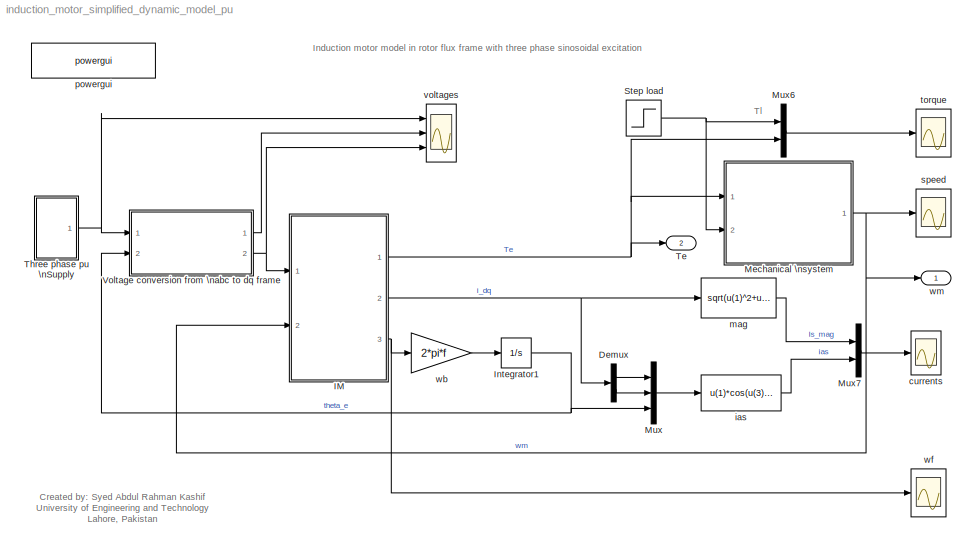
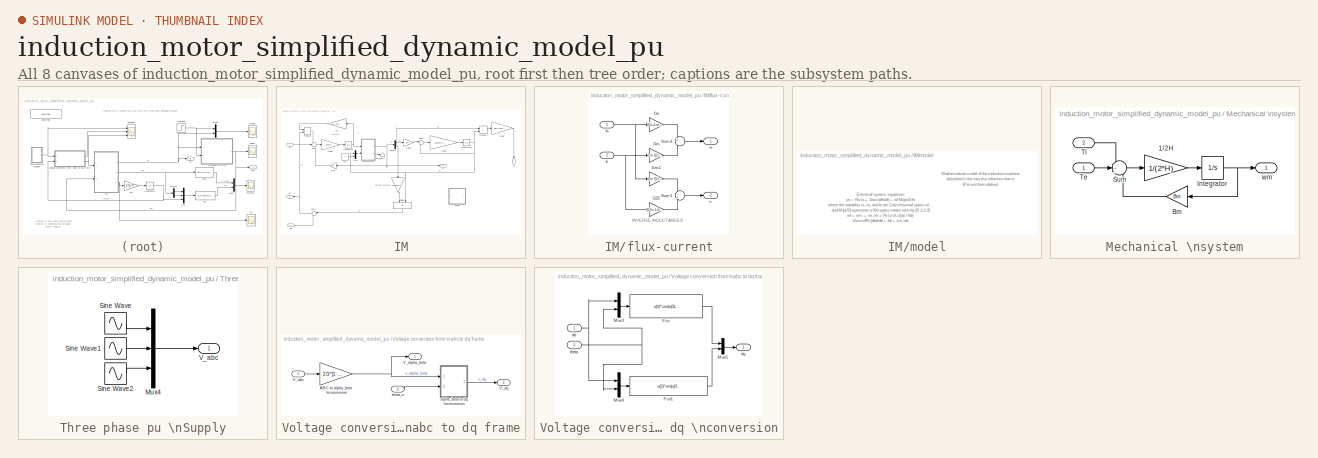
[diagram: thumbnail index - all 8 canvases of the model, root first then tree order]
MODEL induction_motor_simplified_dynamic_model_pu
KIND model
CONFIG InitFcn = clc;\nclear;\n\nf=50;          % motor supply frequency\nRs=0.01;     % Stator resistance in pu\nRr=0.02;     % Rotor resistance in pu\nLls=0.10;     % Stator leakage inductance in pu\nLlr=0.10;     % Rotor leakage inductance in pu\nLm=4.50;    % Magnetising reactance in pu\nwb=2*pi*f;  % base frequency
CONFIG StopFcn = figure(1);\nplot(wm,Te,'-r');\ngrid;\ntitle('Torque-speed X-tics');\nxlabel('Speed [pu]');\nylabel('Torque [pu]');\nclear;
BLOCK [Demux] Demux
  Outputs = 2
  Ports = [1, 2]
  SID = 2
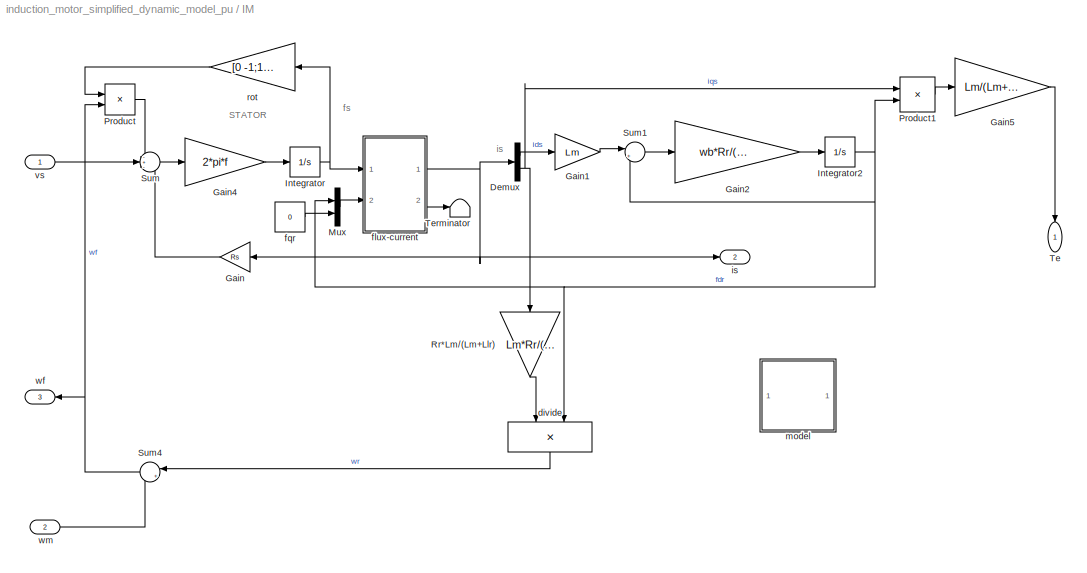
BLOCK [SubSystem] IM
  FunctionWithSeparateData = off
  MaskHideContents = off
  MinAlgLoopOccurrences = off
  Opaque = off
  Ports = [2, 3]
  PropExecContextOutsideSubsystem = off
  RTWSystemCode = Auto
  RequestExecContextInheritance = off
  SID = 85
BLOCK [Demux] IM/Demux
  Outputs = 2
  Ports = [1, 2]
  SID = 88
BLOCK [Gain] IM/Gain
  Gain = Rs
  OutDataType = sfix(16)
  OutScaling = 2^0
  ParameterDataType = sfix(16)
  ParameterScaling = 2^0
  SID = 89
BLOCK [Gain] IM/Gain1
  Gain = Lm
  OutDataType = sfix(16)
  OutScaling = 2^0
  ParameterDataType = sfix(16)
  ParameterScaling = 2^0
  SID = 90
BLOCK [Gain] IM/Gain2
  Gain = wb*Rr/(Lm+Llr)
  OutDataType = sfix(16)
  OutScaling = 2^0
  ParameterDataType = sfix(16)
  ParameterScaling = 2^0
  SID = 91
BLOCK [Gain] IM/Gain4
  Gain = 2*pi*f
  OutDataType = sfix(16)
  OutScaling = 2^0
  ParameterDataType = sfix(16)
  ParameterScaling = 2^0
  SID = 92
BLOCK [Gain] IM/Gain5
  Gain = Lm/(Lm+Llr)
  OutDataType = sfix(16)
  OutScaling = 2^0
  ParameterDataType = sfix(16)
  ParameterScaling = 2^0
  SID = 93
BLOCK [Integrator] IM/Integrator
  InitialCondition = [0 0]
  Ports = [1, 1]
  SID = 94
BLOCK [Integrator] IM/Integrator2
  InitialCondition = 1e-5
  Ports = [1, 1]
  SID = 95
BLOCK [Mux] IM/Mux
  DisplayOption = bar
  Inputs = 2
  Ports = [2, 1]
  SID = 96
BLOCK [Product] IM/Product
  OutDataType = sfix(16)
  OutScaling = 2^0
  Ports = [2, 1]
  RndMeth = Floor
  SID = 97
BLOCK [Product] IM/Product1
  OutDataType = sfix(16)
  OutScaling = 2^0
  Ports = [2, 1]
  RndMeth = Floor
  SID = 98
BLOCK [Gain] IM/Rr*Lm//(Lm+Llr)
  Gain = Lm*Rr/(Lm+Llr)
  OutDataType = sfix(16)
  OutScaling = 2^0
  ParameterDataType = sfix(16)
  ParameterScaling = 2^0
  SID = 99
BLOCK [Sum] IM/Sum
  IconShape = round
  Inputs = -+-
  OutDataType = sfix(16)
  OutScaling = 2^0
  Ports = [3, 1]
  SID = 100
BLOCK [Sum] IM/Sum1
  IconShape = round
  Inputs = |+-
  OutDataType = sfix(16)
  OutScaling = 2^0
  Ports = [2, 1]
  SID = 101
BLOCK [Sum] IM/Sum4
  IconShape = round
  Inputs = |++
  OutDataType = sfix(16)
  OutScaling = 2^0
  Ports = [2, 1]
  SID = 102
BLOCK [Outport] IM/Te
  IconDisplay = Port number
  SID = 119
BLOCK [Terminator] IM/Terminator
  SID = 103
BLOCK [Product] IM/divide
  Inputs = */
  OutDataType = sfix(16)
  OutScaling = 2^0
  Ports = [2, 1]
  RndMeth = Floor
  SID = 104
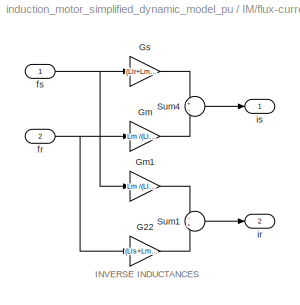
BLOCK [SubSystem] IM/flux-current
  FunctionWithSeparateData = off
  MaskHideContents = off
  MinAlgLoopOccurrences = off
  Opaque = off
  Ports = [2, 2]
  PropExecContextOutsideSubsystem = off
  RTWSystemCode = Auto
  RequestExecContextInheritance = off
  SID = 105
BLOCK [Gain] IM/flux-current/G22
  Gain = (Lls+Lm )/(Lls*Llr+Lls*Lm+Llr*Lm)
  OutDataType = sfix(16)
  OutScaling = 2^0
  ParameterDataType = sfix(16)
  ParameterScaling = 2^0
  SID = 108
BLOCK [Gain] IM/flux-current/Gm
  Gain = Lm /(Lls*Llr+Lls*Lm+Llr*Lm)
  OutDataType = sfix(16)
  OutScaling = 2^0
  ParameterDataType = sfix(16)
  ParameterScaling = 2^0
  SID = 109
BLOCK [Gain] IM/flux-current/Gm1
  Gain = Lm /(Lls*Llr+Lls*Lm+Llr*Lm)
  OutDataType = sfix(16)
  OutScaling = 2^0
  ParameterDataType = sfix(16)
  ParameterScaling = 2^0
  SID = 110
BLOCK [Gain] IM/flux-current/Gs
  Gain = (Llr+Lm) /(Lls*Llr+Lls*Lm+Llr*Lm)
  OutDataType = sfix(16)
  OutScaling = 2^0
  ParameterDataType = sfix(16)
  ParameterScaling = 2^0
  SID = 111
BLOCK [Sum] IM/flux-current/Sum1
  IconShape = round
  Inputs = -+
  OutDataType = sfix(16)
  OutScaling = 2^0
  Ports = [2, 1]
  SID = 112
BLOCK [Sum] IM/flux-current/Sum4
  IconShape = round
  Inputs = +-
  OutDataType = sfix(16)
  OutScaling = 2^0
  Ports = [2, 1]
  SID = 113
BLOCK [Inport] IM/flux-current/fr
  IconDisplay = Port number
  OutDataType = sfix(16)
  OutScaling = 2^0
  Port = 2
  SID = 107
BLOCK [Inport] IM/flux-current/fs
  IconDisplay = Port number
  OutDataType = sfix(16)
  OutScaling = 2^0
  SID = 106
BLOCK [Outport] IM/flux-current/ir
  IconDisplay = Port number
  Port = 2
  SID = 115
BLOCK [Outport] IM/flux-current/is
  IconDisplay = Port number
  SID = 114
BLOCK [Constant] IM/fqr
  OutDataType = sfix(16)
  OutScaling = 2^0
  SID = 116
  Value = 0
BLOCK [Outport] IM/is
  IconDisplay = Port number
  Port = 2
  SID = 120
BLOCK [SubSystem] IM/model
  FunctionWithSeparateData = off
  MaskDisplay = plot(-1.5,-1.5,1.5,1.5,cos(0:.01:7),sin(0:.01:7) )\ndisp('MODEL')
  MaskHideContents = off
  MaskIconFrame = on
  MaskIconOpaque = on
  MaskIconRotate = none
  MaskIconUnits = autoscale
  MaskPortRotate = default
  MinAlgLoopOccurrences = off
  Opaque = off
  Ports = []
  PropExecContextOutsideSubsystem = off
  RTWSystemCode = Auto
  RequestExecContextInheritance = off
  SID = 117
BLOCK [Gain] IM/rot
  Gain = [0 -1;1 0]
  Multiplication = Matrix(K*u)
  OutDataType = sfix(16)
  OutScaling = 2^0
  ParameterDataType = sfix(16)
  ParameterScaling = 2^0
  SID = 118
BLOCK [Inport] IM/vs
  IconDisplay = Port number
  OutDataType = sfix(16)
  OutScaling = 2^0
  SID = 86
BLOCK [Outport] IM/wf
  IconDisplay = Port number
  Port = 3
  SID = 121
BLOCK [Inport] IM/wm
  IconDisplay = Port number
  OutDataType = sfix(16)
  OutScaling = 2^0
  Port = 2
  SID = 87
BLOCK [Integrator] Integrator1
  Ports = [1, 1]
  SID = 40
BLOCK [SubSystem] Mechanical \nsystem
  FunctionWithSeparateData = off
  MaskCallbackString = |
  MaskDisplay = disp('Mechanical\\nSystem')
  MaskEnableString = on,on
  MaskHideContents = off
  MaskIconFrame = on
  MaskIconOpaque = off
  MaskIconRotate = none
  MaskIconUnits = autoscale
  MaskPortRotate = default
  MaskPromptString = Inertia constant [s]|Damping coefficient [pu]
  MaskStyleString = edit,edit
  MaskToolTipString = on,on
  MaskTunableValueString = on,on
  MaskValueString = 0.30|1e-5
  MaskVariables = H=@1;Bm=@2;
  MaskVisibilityString = on,on
  MinAlgLoopOccurrences = off
  Opaque = off
  Ports = [2, 1]
  PropExecContextOutsideSubsystem = off
  RTWSystemCode = Auto
  RequestExecContextInheritance = off
  SID = 41
BLOCK [Gain] Mechanical \nsystem/1//2H
  Gain = 1/(2*H)
  OutDataType = sfix(16)
  OutScaling = 2^0
  ParameterDataType = sfix(16)
  ParameterScaling = 2^0
  SID = 44
BLOCK [Gain] Mechanical \nsystem/Bm
  Gain = Bm
  OutDataType = sfix(16)
  OutScaling = 2^0
  ParameterDataType = sfix(16)
  ParameterScaling = 2^0
  SID = 45
BLOCK [Integrator] Mechanical \nsystem/Integrator
  Ports = [1, 1]
  SID = 46
BLOCK [Sum] Mechanical \nsystem/Sum
  IconShape = round
  Inputs = -+-
  OutDataType = sfix(16)
  OutScaling = 2^0
  Ports = [3, 1]
  SID = 47
BLOCK [Inport] Mechanical \nsystem/Te
  IconDisplay = Port number
  OutDataType = sfix(16)
  OutScaling = 2^0
  SID = 42
BLOCK [Inport] Mechanical \nsystem/Tl
  IconDisplay = Port number
  OutDataType = sfix(16)
  OutScaling = 2^0
  Port = 2
  SID = 43
BLOCK [Outport] Mechanical \nsystem/wm
  IconDisplay = Port number
  SID = 48
BLOCK [Mux] Mux
  DisplayOption = bar
  Inputs = 3
  Ports = [3, 1]
  SID = 49
BLOCK [Mux] Mux6
  DisplayOption = bar
  Inputs = 2
  Ports = [2, 1]
  SID = 51
BLOCK [Mux] Mux7
  DisplayOption = bar
  Inputs = 2
  Ports = [2, 1]
  SID = 52
BLOCK [Step] Step load
  Before = 0.0
  SID = 56
  SampleTime = 0
  Time = 1.5
BLOCK [Outport] Te
  IconDisplay = Port number
  Port = 2
  SID = 77
BLOCK [SubSystem] Three phase pu \nSupply
  FunctionWithSeparateData = off
  MaskEnableString = on
  MaskHideContents = off
  MaskIconFrame = on
  MaskIconOpaque = on
  MaskIconRotate = none
  MaskIconUnits = autoscale
  MaskPortRotate = default
  MaskPromptString = Frequency
  MaskStyleString = edit
  MaskToolTipString = on
  MaskTunableValueString = on
  MaskValueString = f
  MaskVariables = f=@1;
  MaskVisibilityString = on
  MinAlgLoopOccurrences = off
  Opaque = off
  Ports = [0, 1]
  PropExecContextOutsideSubsystem = off
  RTWSystemCode = Auto
  RequestExecContextInheritance = off
  SID = 78
BLOCK [Mux] Three phase pu \nSupply/Mux4
  DisplayOption = bar
  Inputs = 3
  Ports = [3, 1]
  SID = 50
BLOCK [Sin] Three phase pu \nSupply/Sine Wave
  Amplitude = 1
  Bias = 0
  Frequency = 2*pi*f
  Offset = 0
  Phase = pi
  Ports = [0, 1]
  SID = 53
  SampleTime = 0
  Samples = 10
BLOCK [Sin] Three phase pu \nSupply/Sine Wave1
  Amplitude = 1
  Bias = 0
  Frequency = 2*pi*f
  Offset = 0
  Phase = pi-2*pi/3
  Ports = [0, 1]
  SID = 54
  SampleTime = 0
  Samples = 10
BLOCK [Sin] Three phase pu \nSupply/Sine Wave2
  Amplitude = 1
  Bias = 0
  Frequency = 2*pi*f
  Offset = 0
  Phase = pi+2*pi/3
  Ports = [0, 1]
  SID = 55
  SampleTime = 0
  Samples = 10
BLOCK [Outport] Three phase pu \nSupply/V_abc
  IconDisplay = Port number
  SID = 79
BLOCK [SubSystem] Voltage conversion from \nabc to dq frame
  FunctionWithSeparateData = off
  MaskHideContents = off
  MinAlgLoopOccurrences = off
  Opaque = off
  Ports = [2, 2]
  PropExecContextOutsideSubsystem = off
  RTWSystemCode = Auto
  RequestExecContextInheritance = off
  SID = 80
BLOCK [Gain] Voltage conversion from \nabc to dq frame/ABC to alpha_beta \nconversion
  Gain = 2/3*[1 -0.5 -0.5;0 sqrt(3)/2 -sqrt(3)/2]
  Multiplication = Matrix(K*u)
  OutDataType = sfix(16)
  OutScaling = 2^0
  ParameterDataType = sfix(16)
  ParameterScaling = 2^0
  SID = 1
BLOCK [Inport] Voltage conversion from \nabc to dq frame/V_abc
  IconDisplay = Port number
  SID = 82
BLOCK [Outport] Voltage conversion from \nabc to dq frame/V_alpha_beta
  IconDisplay = Port number
  SID = 81
BLOCK [Outport] Voltage conversion from \nabc to dq frame/V_dq
  IconDisplay = Port number
  Port = 2
  SID = 83
BLOCK [SubSystem] Voltage conversion from \nabc to dq frame/alpha_beta to dq \nconversion
  FunctionWithSeparateData = off
  MaskHideContents = off
  MinAlgLoopOccurrences = off
  Opaque = off
  Ports = [2, 1]
  PropExecContextOutsideSubsystem = off
  RTWSystemCode = Auto
  RequestExecContextInheritance = off
  SID = 57
BLOCK [Fcn] Voltage conversion from \nabc to dq frame/alpha_beta to dq \nconversion/Fcn
  Expr = u(1)*cos(u(3))+u(2)*sin(u(3))
  SID = 60
BLOCK [Fcn] Voltage conversion from \nabc to dq frame/alpha_beta to dq \nconversion/Fcn1
  Expr = -u(1)*sin(u(3))+u(2)*cos(u(3))
  SID = 61
BLOCK [Mux] Voltage conversion from \nabc to dq frame/alpha_beta to dq \nconversion/Mux3
  DisplayOption = bar
  Inputs = 2
  Ports = [2, 1]
  SID = 62
BLOCK [Mux] Voltage conversion from \nabc to dq frame/alpha_beta to dq \nconversion/Mux4
  DisplayOption = bar
  Inputs = 2
  Ports = [2, 1]
  SID = 63
BLOCK [Mux] Voltage conversion from \nabc to dq frame/alpha_beta to dq \nconversion/Mux5
  DisplayOption = bar
  Inputs = 2
  Ports = [2, 1]
  SID = 64
BLOCK [Inport] Voltage conversion from \nabc to dq frame/alpha_beta to dq \nconversion/ab
  IconDisplay = Port number
  OutDataType = sfix(16)
  OutScaling = 2^0
  SID = 58
BLOCK [Outport] Voltage conversion from \nabc to dq frame/alpha_beta to dq \nconversion/dq
  IconDisplay = Port number
  SID = 65
BLOCK [Inport] Voltage conversion from \nabc to dq frame/alpha_beta to dq \nconversion/theta
  IconDisplay = Port number
  OutDataType = sfix(16)
  OutScaling = 2^0
  Port = 2
  SID = 59
BLOCK [Inport] Voltage conversion from \nabc to dq frame/theta_e
  IconDisplay = Port number
  Port = 2
  SID = 84
BLOCK [Scope] currents
  DataFormat = StructureWithTime
  Floating = off
  LimitDataPoints = off
  NumInputPorts = 1
  Ports = [1]
  SID = 66
  SampleTime = 0
  SaveName = ScopeData3
  TimeRange = 2
  YMax = 10
  YMin = -6
  ZoomMode = xonly
BLOCK [Fcn] ias
  Expr = u(1)*cos(u(3))-u(2)*sin(u(3))
  SID = 67
BLOCK [Fcn] mag
  Expr = sqrt(u(1)^2+u(2)^2)
  SID = 69
BLOCK [Reference] powergui  REF=powerlib/powergui
  DisableRonSwitches = off
  DisableSnubberDevices = off
  DisableVfSwitches = off
  DisplayEquations = off
  DisplayStyle = 1
  EnableUseOfTLC = off
  Frange = [0:2:500]
  FreqAxis = off
  FunctionMessages = off
  FunctionWithSeparateData = off
  HookPort = off
  Interpol = off
  MaxFrequency = 1000
  Ports = []
  Priority = 1
  RTWMemSecDataConstants = Inherit from model
  RTWMemSecDataInternal = Inherit from model
  RTWMemSecDataParameters = Inherit from model
  RTWMemSecFuncExecute = Inherit from model
  RTWMemSecFuncInitTerm = Inherit from model
  ResistiveCurrentMeasurement = off
  RestoreLinks = warning
  RmsSteady = 1
  SID = 174
  SPID = off
  SampleTime = 5e-6
  ShowGrid = off
  ShowPortLabels = FromPortIcon
  SourceBlock = powerlib/powergui
  SourceType = PSB option menu block
  StartTime = 0.0
  SwTol = 0
  SystemSampleTime = -1
  Ts = 0
  UserData = DataTag0
  UserDataPersistent = on
  Xlog = on
  Ylog = off
  ZoomFFT = on
  cycles = 1
  display = off
  echomessages = off
  frequency = 60
  frequencyindice = 50
  frequencyindicesteady = 1
  fundamental = 60
  methode = off
  save = off
  variable = ZData
  x0status = blocks
BLOCK [Scope] speed
  DataFormat = StructureWithTime
  Decimation = 20
  Floating = off
  MaxDataPoints = 20000
  NumInputPorts = 1
  Ports = [1]
  SID = 71
  SampleTime = 0
  SaveName = wm
  TimeRange = 2
  YMax = 1.4
  YMin = 0
BLOCK [Scope] torque
  DataFormat = StructureWithTime
  Decimation = 20
  Floating = off
  MaxDataPoints = 20000
  NumInputPorts = 1
  Ports = [1]
  SID = 72
  SampleTime = 0
  TimeRange = 2
  YMax = 3
  YMin = -3
  ZoomMode = yonly
BLOCK [Scope] voltages
  DataFormat = StructureWithTime
  Floating = off
  NumInputPorts = 3
  Ports = [3]
  SID = 73
  SampleTime = 0
  SaveName = ScopeData2
  TimeRange = 0.02
  YMax = 1.5~1.5~1.5
  YMin = -1.5~-1.5~-0.5
  ZoomMode = xonly
BLOCK [Gain] wb
  Gain = 2*pi*f
  OutDataType = sfix(16)
  OutScaling = 2^0
  ParameterDataType = sfix(16)
  ParameterScaling = 2^0
  SID = 75
BLOCK [Scope] wf
  DataFormat = StructureWithTime
  Decimation = 20
  Floating = off
  MaxDataPoints = 20000
  NumInputPorts = 1
  Ports = [1]
  SID = 74
  SampleTime = 0
  SaveName = ScopeData1
  TimeRange = 2
  YMax = 2
  YMin = -2.5
BLOCK [Outport] wm
  IconDisplay = Port number
  SID = 76
ANNOTATION (root): Created by: Syed Abdul Rahman Kashif\nUniversity of Engineering and Technology\nLahore, Pakistan
ANNOTATION (root): Induction motor model in rotor flux frame with three phase sinosoidal excitation
ANNOTATION (root): Tl
ANNOTATION IM: STATOR
ANNOTATION IM: fs
ANNOTATION IM: is
ANNOTATION IM/flux-current: INVERSE INDUCTANCES
ANNOTATION IM/model: Electrical system equations: \n vs = Rs is + 1/wo (dfs/dt) + wf M(pi/2) fs \n where the variables is, vs, and fs are 2-dimensional space vectors\n and M(pi/2) represents a 90o space rotator namely [0 -1;1 0]\n wf = wm + wr; wr = Rr Lm/Lr (iqs / fdr)\n 1/wo Lr/Rr (dfdr/dt) + fdr = Lm ids\n fqr = 0\n \n The flux linkage current relations :\n fs = Ls is + Lm ir\n fr = Lm is + Lr ir \n Ls= Lm + Lsl ; ...<+108ch>
ANNOTATION IM/model: Mathematical model of the induction machine \ndescribed in the rotor flux reference frame.\n(Per unit formulation)
LINE Demux:1 -> Mux:1
LINE Demux:2 -> Mux:2
LINE IM/Demux:1 -> IM/Gain1:1
NET IM/Demux:2 -> IM/Product1:1, IM/Rr*Lm//(Lm+Llr):1
LINE IM/Gain1:1 -> IM/Sum1:1
LINE IM/Gain2:1 -> IM/Integrator2:1
LINE IM/Gain4:1 -> IM/Integrator:1
LINE IM/Gain5:1 -> IM/Te:1
LINE IM/Gain:1 -> IM/Sum:3
NET IM/Integrator2:1 -> IM/Mux:1, IM/Product1:2, IM/Sum1:2, IM/divide:2
NET IM/Integrator:1 -> IM/flux-current:1, IM/rot:1
LINE IM/Mux:1 -> IM/flux-current:2
LINE IM/Product1:1 -> IM/Gain5:1
LINE IM/Product:1 -> IM/Sum:1
LINE IM/Rr*Lm//(Lm+Llr):1 -> IM/divide:1
LINE IM/Sum1:1 -> IM/Gain2:1
NET IM/Sum4:1 -> IM/Product:2, IM/wf:1
LINE IM/Sum:1 -> IM/Gain4:1
LINE IM/divide:1 -> IM/Sum4:1
LINE IM/flux-current/G22:1 -> IM/flux-current/Sum1:2
LINE IM/flux-current/Gm1:1 -> IM/flux-current/Sum1:1
LINE IM/flux-current/Gm:1 -> IM/flux-current/Sum4:2
LINE IM/flux-current/Gs:1 -> IM/flux-current/Sum4:1
LINE IM/flux-current/Sum1:1 -> IM/flux-current/ir:1
LINE IM/flux-current/Sum4:1 -> IM/flux-current/is:1
NET IM/flux-current/fr:1 -> IM/flux-current/G22:1, IM/flux-current/Gm:1
NET IM/flux-current/fs:1 -> IM/flux-current/Gm1:1, IM/flux-current/Gs:1
NET IM/flux-current:1 -> IM/Demux:1, IM/Gain:1, IM/is:1
LINE IM/flux-current:2 -> IM/Terminator:1
LINE IM/fqr:1 -> IM/Mux:2
LINE IM/rot:1 -> IM/Product:1
LINE IM/vs:1 -> IM/Sum:2
LINE IM/wm:1 -> IM/Sum4:2
NET IM:1 -> Mechanical \nsystem:1, Mux6:2, Te:1
NET IM:2 -> Demux:1, mag:1
NET IM:3 -> wb:1, wf:1
NET Integrator1:1 -> Mux:3, Voltage conversion from \nabc to dq frame:2
LINE Mechanical \nsystem/1//2H:1 -> Mechanical \nsystem/Integrator:1
LINE Mechanical \nsystem/Bm:1 -> Mechanical \nsystem/Sum:3
NET Mechanical \nsystem/Integrator:1 -> Mechanical \nsystem/Bm:1, Mechanical \nsystem/wm:1
LINE Mechanical \nsystem/Sum:1 -> Mechanical \nsystem/1//2H:1
LINE Mechanical \nsystem/Te:1 -> Mechanical \nsystem/Sum:2
LINE Mechanical \nsystem/Tl:1 -> Mechanical \nsystem/Sum:1
NET Mechanical \nsystem:1 -> IM:2, speed:1, wm:1
LINE Mux6:1 -> torque:1
LINE Mux7:1 -> currents:1
LINE Mux:1 -> ias:1
NET Step load:1 -> Mechanical \nsystem:2, Mux6:1
LINE Three phase pu \nSupply/Mux4:1 -> Three phase pu \nSupply/V_abc:1
LINE Three phase pu \nSupply/Sine Wave1:1 -> Three phase pu \nSupply/Mux4:2
LINE Three phase pu \nSupply/Sine Wave2:1 -> Three phase pu \nSupply/Mux4:3
LINE Three phase pu \nSupply/Sine Wave:1 -> Three phase pu \nSupply/Mux4:1
NET Three phase pu \nSupply:1 -> Voltage conversion from \nabc to dq frame:1, voltages:1
NET Voltage conversion from \nabc to dq frame/ABC to alpha_beta \nconversion:1 -> Voltage conversion from \nabc to dq frame/V_alpha_beta:1, Voltage conversion from \nabc to dq frame/alpha_beta to dq \nconversion:1
LINE Voltage conversion from \nabc to dq frame/V_abc:1 -> Voltage conversion from \nabc to dq frame/ABC to alpha_beta \nconversion:1
LINE Voltage conversion from \nabc to dq frame/alpha_beta to dq \nconversion/Fcn1:1 -> Voltage conversion from \nabc to dq frame/alpha_beta to dq \nconversion/Mux5:2
LINE Voltage conversion from \nabc to dq frame/alpha_beta to dq \nconversion/Fcn:1 -> Voltage conversion from \nabc to dq frame/alpha_beta to dq \nconversion/Mux5:1
LINE Voltage conversion from \nabc to dq frame/alpha_beta to dq \nconversion/Mux3:1 -> Voltage conversion from \nabc to dq frame/alpha_beta to dq \nconversion/Fcn:1
LINE Voltage conversion from \nabc to dq frame/alpha_beta to dq \nconversion/Mux4:1 -> Voltage conversion from \nabc to dq frame/alpha_beta to dq \nconversion/Fcn1:1
LINE Voltage conversion from \nabc to dq frame/alpha_beta to dq \nconversion/Mux5:1 -> Voltage conversion from \nabc to dq frame/alpha_beta to dq \nconversion/dq:1
NET Voltage conversion from \nabc to dq frame/alpha_beta to dq \nconversion/ab:1 -> Voltage conversion from \nabc to dq frame/alpha_beta to dq \nconversion/Mux3:1, Voltage conversion from \nabc to dq frame/alpha_beta to dq \nconversion/Mux4:1
NET Voltage conversion from \nabc to dq frame/alpha_beta to dq \nconversion/theta:1 -> Voltage conversion from \nabc to dq frame/alpha_beta to dq \nconversion/Mux3:2, Voltage conversion from \nabc to dq frame/alpha_beta to dq \nconversion/Mux4:2
LINE Voltage conversion from \nabc to dq frame/alpha_beta to dq \nconversion:1 -> Voltage conversion from \nabc to dq frame/V_dq:1
LINE Voltage conversion from \nabc to dq frame/theta_e:1 -> Voltage conversion from \nabc to dq frame/alpha_beta to dq \nconversion:2
LINE Voltage conversion from \nabc to dq frame:1 -> voltages:2
NET Voltage conversion from \nabc to dq frame:2 -> IM:1, voltages:3
LINE ias:1 -> Mux7:2
LINE mag:1 -> Mux7:1
LINE wb:1 -> Integrator1:1
note: NET lines group one-source signal fan-out (src -> all destinations, sorted); 1:1 wires keep LINE
